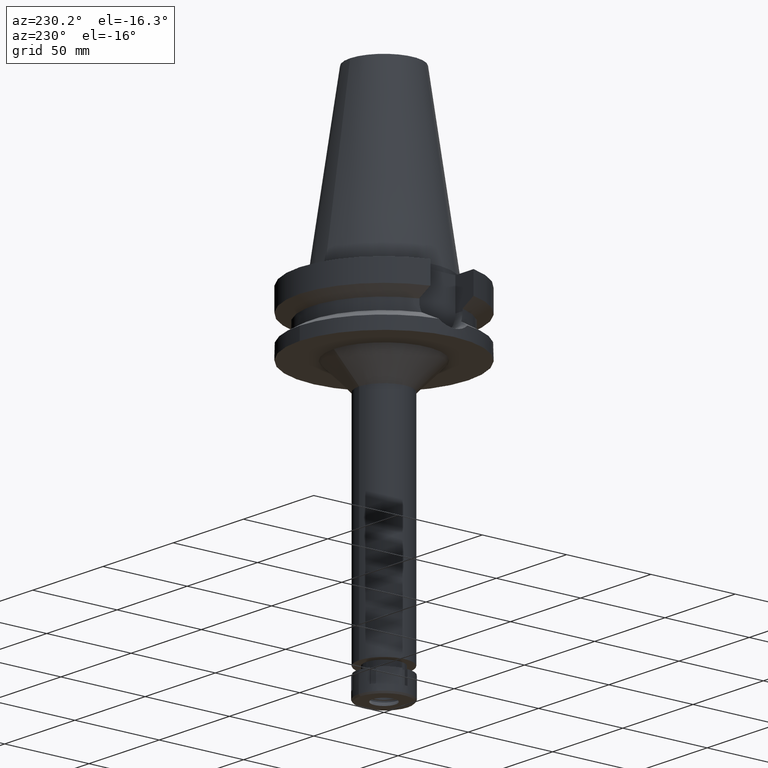
[diagram: clean part render]
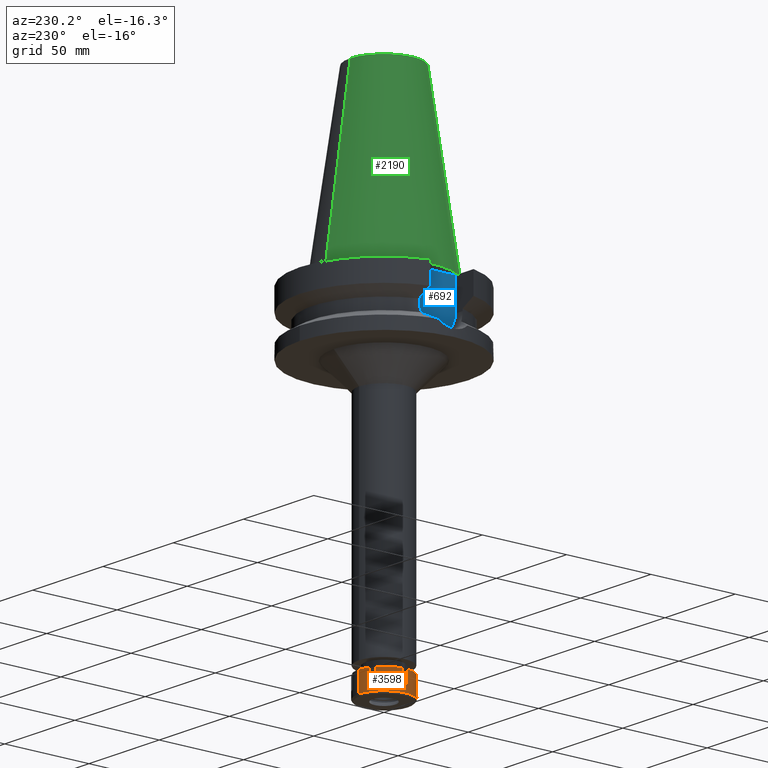
[diagram: same view with three faces highlighted in distinct colors, each labeled with its STEP entity id]
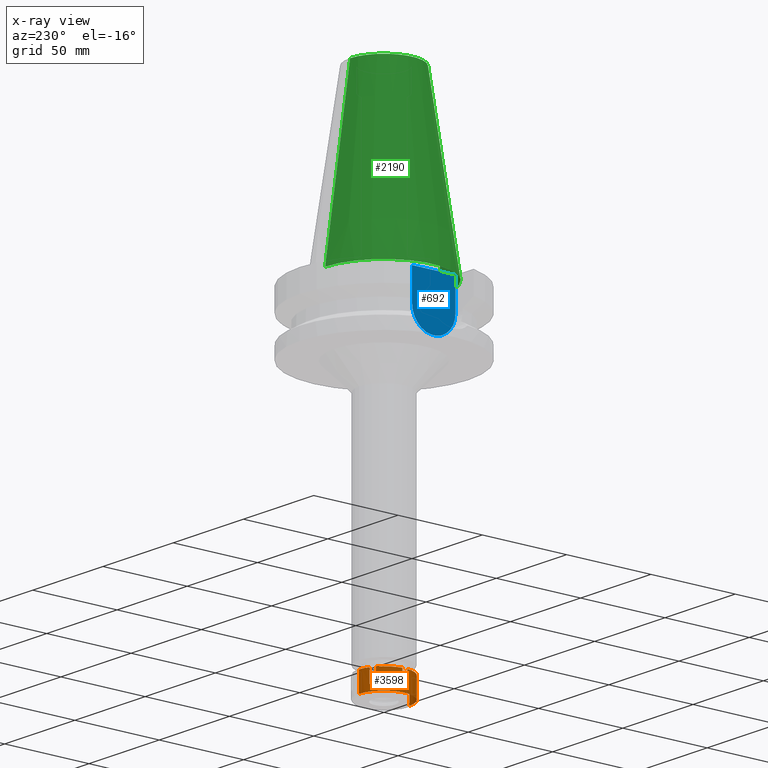
[diagram: x-ray of the same camera — body ghosted, the three highlighted faces saturated]
A machine part, auxiliary view with three faces highlighted in distinct colors.
The next image is the same camera in x-ray (body ghosted, the three faces saturated) — at least one of them is partly hidden behind the body in this view.
Their STEP definitions:

[orange] entity #3598 — the highlighted cylindrical surface (edge-blend (fillet) strip) has radius 15 mm, axis along (0, 0, -1).
#27 = EDGE_CURVE ( 'NONE', #848, #1413, #1573, .T. ) ;
#45 = LINE ( 'NONE', #3471, #1958 ) ;
#89 = CARTESIAN_POINT ( 'NONE',  ( 0.0000000000000000000, 0.0000000000000000000, 0.0000000000000000000 ) ) ;
#157 = DIRECTION ( 'NONE',  ( 0.0000000000000000000, 0.0000000000000000000, -1.000000000000000000 ) ) ;
#193 = CIRCLE ( 'NONE', #3346, 15.00000000000000533 ) ;
#202 = VECTOR ( 'NONE', #470, 1000.000000000000000 ) ;
#215 = CARTESIAN_POINT ( 'NONE',  ( -8.761443883976001601, 12.17526595470999951, -8.000000000000000000 ) ) ;
#222 = DIRECTION ( 'NONE',  ( 0.0000000000000000000, 0.0000000000000000000, -1.000000000000000000 ) ) ;
#264 = ORIENTED_EDGE ( 'NONE', *, *, #2712, .T. ) ;
#322 = EDGE_CURVE ( 'NONE', #3193, #703, #45, .T. ) ;
#360 = CARTESIAN_POINT ( 'NONE',  ( -6.163367672623000004, -13.67526595470999951, -8.000000000000000000 ) ) ;
#371 = ORIENTED_EDGE ( 'NONE', *, *, #3369, .T. ) ;
#382 = CARTESIAN_POINT ( 'NONE',  ( 0.0000000000000000000, 0.0000000000000000000, -8.000000000000000000 ) ) ;
#417 = LINE ( 'NONE', #2958, #202 ) ;
#460 = CARTESIAN_POINT ( 'NONE',  ( 0.0000000000000000000, 0.0000000000000000000, -8.000000000000000000 ) ) ;
#470 = DIRECTION ( 'NONE',  ( 0.0000000000000000000, 0.0000000000000000000, -1.000000000000000000 ) ) ;
#482 = VECTOR ( 'NONE', #2738, 1000.000000000000000 ) ;
#485 = CIRCLE ( 'NONE', #1843, 15.00000000000000000 ) ;
#487 = LINE ( 'NONE', #3551, #1204 ) ;
#489 = AXIS2_PLACEMENT_3D ( 'NONE', #382, #1233, #3185 ) ;
#493 = AXIS2_PLACEMENT_3D ( 'NONE', #691, #940, #676 ) ;
#530 = CIRCLE ( 'NONE', #2014, 14.99999999999999645 ) ;
#551 = DIRECTION ( 'NONE',  ( 0.0000000000000000000, 0.0000000000000000000, 1.000000000000000000 ) ) ;
#594 = CARTESIAN_POINT ( 'NONE',  ( 0.0000000000000000000, -15.00000000000000000, 0.0000000000000000000 ) ) ;
#664 = AXIS2_PLACEMENT_3D ( 'NONE', #1336, #1365, #1891 ) ;
#676 = DIRECTION ( 'NONE',  ( -0.4108911781748131320, 0.9116843969807282289, 0.0000000000000000000 ) ) ;
#688 = VERTEX_POINT ( 'NONE', #360 ) ;
#691 = CARTESIAN_POINT ( 'NONE',  ( 0.0000000000000000000, 0.0000000000000000000, 0.0000000000000000000 ) ) ;
#703 = VERTEX_POINT ( 'NONE', #1217 ) ;
#710 = CARTESIAN_POINT ( 'NONE',  ( -6.163367672621999915, 13.67526595470999951, 0.0000000000000000000 ) ) ;
#714 = EDGE_CURVE ( 'NONE', #3006, #2495, #2343, .T. ) ;
#737 = DIRECTION ( 'NONE',  ( -0.9949874371066197432, -0.1000000000000019623, 0.0000000000000000000 ) ) ;
#750 = EDGE_CURVE ( 'NONE', #3006, #3412, #1620, .T. ) ;
#797 = DIRECTION ( 'NONE',  ( -0.5840962589317860720, 0.8116843969806811776, 0.0000000000000000000 ) ) ;
#829 = EDGE_CURVE ( 'NONE', #703, #1776, #2561, .T. ) ;
#848 = VERTEX_POINT ( 'NONE', #2876 ) ;
#855 = CARTESIAN_POINT ( 'NONE',  ( -6.163367672623000004, -13.67526595470999951, 0.0000000000000000000 ) ) ;
#878 = CARTESIAN_POINT ( 'NONE',  ( -8.761443883976001601, -12.17526595470999951, -8.000000000000000000 ) ) ;
#889 = CARTESIAN_POINT ( 'NONE',  ( -8.761443883976001601, -12.17526595470999951, 0.0000000000000000000 ) ) ;
#934 = VERTEX_POINT ( 'NONE', #2320 ) ;
#940 = DIRECTION ( 'NONE',  ( 0.0000000000000000000, 0.0000000000000000000, -1.000000000000000000 ) ) ;
#951 = DIRECTION ( 'NONE',  ( 0.0000000000000000000, -1.000000000000000000, 0.0000000000000000000 ) ) ;
#977 = DIRECTION ( 'NONE',  ( 0.0000000000000000000, 0.0000000000000000000, 1.000000000000000000 ) ) ;
#1013 = ORIENTED_EDGE ( 'NONE', *, *, #322, .T. ) ;
#1034 = CARTESIAN_POINT ( 'NONE',  ( -8.761443883976001601, -12.17526595470999951, 0.0000000000000000000 ) ) ;
#1054 = EDGE_CURVE ( 'NONE', #3371, #3412, #1271, .T. ) ;
#1090 = CIRCLE ( 'NONE', #664, 15.00000000000000533 ) ;
#1136 = EDGE_CURVE ( 'NONE', #2042, #1516, #485, .T. ) ;
#1143 = VERTEX_POINT ( 'NONE', #1525 ) ;
#1183 = ORIENTED_EDGE ( 'NONE', *, *, #1136, .T. ) ;
#1204 = VECTOR ( 'NONE', #977, 1000.000000000000000 ) ;
#1217 = CARTESIAN_POINT ( 'NONE',  ( 0.0000000000000000000, 15.00000000000000000, -11.59999999999999964 ) ) ;
#1221 = ORIENTED_EDGE ( 'NONE', *, *, #3511, .T. ) ;
#1228 = DIRECTION ( 'NONE',  ( 0.0000000000000000000, 0.0000000000000000000, -1.000000000000000000 ) ) ;
#1233 = DIRECTION ( 'NONE',  ( 0.0000000000000000000, 0.0000000000000000000, -1.000000000000000000 ) ) ;
#1271 = LINE ( 'NONE', #2358, #3587 ) ;
#1284 = CARTESIAN_POINT ( 'NONE',  ( 0.0000000000000000000, 15.00000000000000000, 0.0000000000000000000 ) ) ;
#1296 = CARTESIAN_POINT ( 'NONE',  ( 0.0000000000000000000, 0.0000000000000000000, 0.0000000000000000000 ) ) ;
#1308 = CARTESIAN_POINT ( 'NONE',  ( 0.0000000000000000000, 0.0000000000000000000, 0.0000000000000000000 ) ) ;
#1336 = CARTESIAN_POINT ( 'NONE',  ( 0.0000000000000000000, 0.0000000000000000000, 0.0000000000000000000 ) ) ;
#1349 = CARTESIAN_POINT ( 'NONE',  ( 0.0000000000000000000, -15.00000000000000000, -11.59999999999999964 ) ) ;
#1365 = DIRECTION ( 'NONE',  ( 0.0000000000000000000, 0.0000000000000000000, -1.000000000000000000 ) ) ;
#1413 = VERTEX_POINT ( 'NONE', #2955 ) ;
#1433 = ORIENTED_EDGE ( 'NONE', *, *, #2793, .F. ) ;
#1449 = ORIENTED_EDGE ( 'NONE', *, *, #3617, .F. ) ;
#1450 = DIRECTION ( 'NONE',  ( 0.0000000000000000000, 0.0000000000000000000, -1.000000000000000000 ) ) ;
#1516 = VERTEX_POINT ( 'NONE', #855 ) ;
#1525 = CARTESIAN_POINT ( 'NONE',  ( -8.761443883976001601, 12.17526595470999951, -8.000000000000000000 ) ) ;
#1573 = LINE ( 'NONE', #710, #3150 ) ;
#1618 = ORIENTED_EDGE ( 'NONE', *, *, #1054, .F. ) ;
#1620 = CIRCLE ( 'NONE', #1852, 15.00000000000000355 ) ;
#1632 = VERTEX_POINT ( 'NONE', #3174 ) ;
#1636 = ORIENTED_EDGE ( 'NONE', *, *, #750, .T. ) ;
#1661 = ORIENTED_EDGE ( 'NONE', *, *, #1751, .T. ) ;
#1751 = EDGE_CURVE ( 'NONE', #1143, #1413, #530, .T. ) ;
#1776 = VERTEX_POINT ( 'NONE', #1349 ) ;
#1818 = ORIENTED_EDGE ( 'NONE', *, *, #714, .F. ) ;
#1843 = AXIS2_PLACEMENT_3D ( 'NONE', #89, #1228, #951 ) ;
#1850 = DIRECTION ( 'NONE',  ( 0.0000000000000000000, 0.0000000000000000000, -1.000000000000000000 ) ) ;
#1852 = AXIS2_PLACEMENT_3D ( 'NONE', #1308, #3567, #2956 ) ;
#1853 = DIRECTION ( 'NONE',  ( 0.0000000000000000000, -1.000000000000000000, 0.0000000000000000000 ) ) ;
#1891 = DIRECTION ( 'NONE',  ( -0.9949874371066197432, 0.1000000000000019623, 0.0000000000000000000 ) ) ;
#1916 = VECTOR ( 'NONE', #3317, 1000.000000000000000 ) ;
#1958 = VECTOR ( 'NONE', #1450, 1000.000000000000000 ) ;
#2014 = AXIS2_PLACEMENT_3D ( 'NONE', #460, #222, #797 ) ;
#2042 = VERTEX_POINT ( 'NONE', #594 ) ;
#2121 = ORIENTED_EDGE ( 'NONE', *, *, #27, .F. ) ;
#2150 = CIRCLE ( 'NONE', #489, 15.00000000000000178 ) ;
#2216 = LINE ( 'NONE', #3367, #1916 ) ;
#2316 = AXIS2_PLACEMENT_3D ( 'NONE', #2809, #551, #3671 ) ;
#2320 = CARTESIAN_POINT ( 'NONE',  ( -14.92481155659999992, 1.500000000000000000, -8.000000000000000000 ) ) ;
#2343 = LINE ( 'NONE', #1034, #482 ) ;
#2358 = CARTESIAN_POINT ( 'NONE',  ( -14.92481155659999992, -1.500000000000000000, -8.000000000000000000 ) ) ;
#2375 = EDGE_CURVE ( 'NONE', #3371, #934, #193, .T. ) ;
#2425 = FACE_OUTER_BOUND ( 'NONE', #2869, .T. ) ;
#2439 = LINE ( 'NONE', #215, #2987 ) ;
#2495 = VERTEX_POINT ( 'NONE', #878 ) ;
#2558 = CARTESIAN_POINT ( 'NONE',  ( -14.92481155659999992, -1.500000000000000000, 0.0000000000000000000 ) ) ;
#2561 = CIRCLE ( 'NONE', #2316, 15.00000000000000000 ) ;
#2711 = CYLINDRICAL_SURFACE ( 'NONE', #3409, 15.00000000000000000 ) ;
#2712 = EDGE_CURVE ( 'NONE', #688, #2495, #2150, .T. ) ;
#2738 = DIRECTION ( 'NONE',  ( 0.0000000000000000000, 0.0000000000000000000, -1.000000000000000000 ) ) ;
#2746 = DIRECTION ( 'NONE',  ( 0.0000000000000000000, 0.0000000000000000000, -1.000000000000000000 ) ) ;
#2768 = ORIENTED_EDGE ( 'NONE', *, *, #3344, .F. ) ;
#2777 = EDGE_CURVE ( 'NONE', #1143, #3236, #2439, .T. ) ;
#2793 = EDGE_CURVE ( 'NONE', #688, #1516, #487, .T. ) ;
#2809 = CARTESIAN_POINT ( 'NONE',  ( 0.0000000000000000000, 0.0000000000000000000, -11.59999999999999964 ) ) ;
#2869 = EDGE_LOOP ( 'NONE', ( #2121, #1221, #1013, #2934, #2768, #1183, #1433, #264, #1818, #1636, #1618, #3482, #1449, #371, #3358, #1661 ) ) ;
#2876 = CARTESIAN_POINT ( 'NONE',  ( -6.163367672621999915, 13.67526595470999951, 0.0000000000000000000 ) ) ;
#2933 = DIRECTION ( 'NONE',  ( 0.0000000000000000000, 0.0000000000000000000, 1.000000000000000000 ) ) ;
#2934 = ORIENTED_EDGE ( 'NONE', *, *, #829, .T. ) ;
#2955 = CARTESIAN_POINT ( 'NONE',  ( -6.163367672621999915, 13.67526595470999951, -8.000000000000000000 ) ) ;
#2956 = DIRECTION ( 'NONE',  ( -0.5840962589317197917, -0.8116843969807286951, 0.0000000000000000000 ) ) ;
#2958 = CARTESIAN_POINT ( 'NONE',  ( -14.92481155659999992, 1.500000000000000000, 0.0000000000000000000 ) ) ;
#2987 = VECTOR ( 'NONE', #3246, 1000.000000000000000 ) ;
#3006 = VERTEX_POINT ( 'NONE', #889 ) ;
#3029 = CARTESIAN_POINT ( 'NONE',  ( -14.92481155659999992, -1.500000000000000000, -8.000000000000000000 ) ) ;
#3150 = VECTOR ( 'NONE', #1850, 1000.000000000000000 ) ;
#3174 = CARTESIAN_POINT ( 'NONE',  ( -14.92481155659999992, 1.500000000000000000, 0.0000000000000000000 ) ) ;
#3185 = DIRECTION ( 'NONE',  ( -0.4108911781748959546, -0.9116843969806908143, 0.0000000000000000000 ) ) ;
#3193 = VERTEX_POINT ( 'NONE', #1284 ) ;
#3213 = CARTESIAN_POINT ( 'NONE',  ( -8.761443883976001601, 12.17526595470999951, 0.0000000000000000000 ) ) ;
#3236 = VERTEX_POINT ( 'NONE', #3213 ) ;
#3246 = DIRECTION ( 'NONE',  ( 0.0000000000000000000, 0.0000000000000000000, 1.000000000000000000 ) ) ;
#3317 = DIRECTION ( 'NONE',  ( 0.0000000000000000000, 0.0000000000000000000, -1.000000000000000000 ) ) ;
#3344 = EDGE_CURVE ( 'NONE', #2042, #1776, #2216, .T. ) ;
#3346 = AXIS2_PLACEMENT_3D ( 'NONE', #3609, #2746, #737 ) ;
#3354 = CIRCLE ( 'NONE', #493, 14.99999999999999645 ) ;
#3358 = ORIENTED_EDGE ( 'NONE', *, *, #2777, .F. ) ;
#3367 = CARTESIAN_POINT ( 'NONE',  ( 0.0000000000000000000, -15.00000000000000000, 0.0000000000000000000 ) ) ;
#3369 = EDGE_CURVE ( 'NONE', #1632, #3236, #1090, .T. ) ;
#3371 = VERTEX_POINT ( 'NONE', #3029 ) ;
#3409 = AXIS2_PLACEMENT_3D ( 'NONE', #1296, #157, #1853 ) ;
#3412 = VERTEX_POINT ( 'NONE', #2558 ) ;
#3471 = CARTESIAN_POINT ( 'NONE',  ( 0.0000000000000000000, 15.00000000000000000, 0.0000000000000000000 ) ) ;
#3482 = ORIENTED_EDGE ( 'NONE', *, *, #2375, .T. ) ;
#3511 = EDGE_CURVE ( 'NONE', #848, #3193, #3354, .T. ) ;
#3551 = CARTESIAN_POINT ( 'NONE',  ( -6.163367672623000004, -13.67526595470999951, -8.000000000000000000 ) ) ;
#3567 = DIRECTION ( 'NONE',  ( 0.0000000000000000000, 0.0000000000000000000, -1.000000000000000000 ) ) ;
#3587 = VECTOR ( 'NONE', #2933, 1000.000000000000000 ) ;
#3598 = ADVANCED_FACE ( 'NONE', ( #2425 ), #2711, .T. ) ;
#3609 = CARTESIAN_POINT ( 'NONE',  ( 0.0000000000000000000, 0.0000000000000000000, -8.000000000000000000 ) ) ;
#3617 = EDGE_CURVE ( 'NONE', #1632, #934, #417, .T. ) ;
#3671 = DIRECTION ( 'NONE',  ( 0.0000000000000000000, 1.000000000000000000, 0.0000000000000000000 ) ) ;

[blue] entity #692 — the highlighted planar face has unit normal (-1, 0, 0).
#61 = AXIS2_PLACEMENT_3D ( 'NONE', #1115, #325, #2276 ) ;
#325 = DIRECTION ( 'NONE',  ( 1.000000000000000000, 0.0000000000000000000, 0.0000000000000000000 ) ) ;
#375 = VERTEX_POINT ( 'NONE', #1997 ) ;
#388 = CARTESIAN_POINT ( 'NONE',  ( -35.39999999999999858, 12.84999999999999964, -21.14999999999999858 ) ) ;
#571 = CARTESIAN_POINT ( 'NONE',  ( -35.39999999999999858, -12.84999999999999964, -3.000000000000000000 ) ) ;
#590 = CARTESIAN_POINT ( 'NONE',  ( -35.39999999999999858, 2.015768631397000034E-14, 0.0000000000000000000 ) ) ;
#677 = DIRECTION ( 'NONE',  ( 0.0000000000000000000, 0.0000000000000000000, 1.000000000000000000 ) ) ;
#692 = ADVANCED_FACE ( 'NONE', ( #899 ), #2020, .T. ) ;
#749 = ORIENTED_EDGE ( 'NONE', *, *, #864, .F. ) ;
#834 = VECTOR ( 'NONE', #677, 1000.000000000000000 ) ;
#864 = EDGE_CURVE ( 'NONE', #1375, #3602, #2199, .T. ) ;
#899 = FACE_OUTER_BOUND ( 'NONE', #2655, .T. ) ;
#1061 = CARTESIAN_POINT ( 'NONE',  ( -35.39999999999999858, -12.84999999999999964, -21.14999999999999858 ) ) ;
#1079 = VECTOR ( 'NONE', #3515, 1000.000000000000000 ) ;
#1115 = CARTESIAN_POINT ( 'NONE',  ( -35.39999999999999858, 1.497743035356999952E-14, -21.14999999999999858 ) ) ;
#1375 = VERTEX_POINT ( 'NONE', #1061 ) ;
#1403 = DIRECTION ( 'NONE',  ( 0.0000000000000000000, 1.000000000000000000, 0.0000000000000000000 ) ) ;
#1496 = CARTESIAN_POINT ( 'NONE',  ( -35.39999999999999858, -12.84999999999999964, -3.000000000000000000 ) ) ;
#1559 = LINE ( 'NONE', #388, #834 ) ;
#1740 = EDGE_CURVE ( 'NONE', #3602, #375, #1559, .T. ) ;
#1963 = EDGE_CURVE ( 'NONE', #3199, #375, #2520, .T. ) ;
#1997 = CARTESIAN_POINT ( 'NONE',  ( -35.39999999999999858, 12.84999999999999964, -3.000000000000000000 ) ) ;
#2020 = PLANE ( 'NONE',  #2626 ) ;
#2174 = EDGE_CURVE ( 'NONE', #3199, #1375, #2902, .T. ) ;
#2199 = CIRCLE ( 'NONE', #61, 12.84999999999999964 ) ;
#2276 = DIRECTION ( 'NONE',  ( 0.0000000000000000000, -1.000000000000000000, 0.0000000000000000000 ) ) ;
#2370 = ORIENTED_EDGE ( 'NONE', *, *, #2174, .F. ) ;
#2411 = CARTESIAN_POINT ( 'NONE',  ( -35.39999999999999858, -12.84999999999999964, -3.000000000000000000 ) ) ;
#2445 = ORIENTED_EDGE ( 'NONE', *, *, #1963, .T. ) ;
#2520 = LINE ( 'NONE', #571, #3525 ) ;
#2626 = AXIS2_PLACEMENT_3D ( 'NONE', #590, #2843, #3166 ) ;
#2655 = EDGE_LOOP ( 'NONE', ( #2729, #749, #2370, #2445 ) ) ;
#2729 = ORIENTED_EDGE ( 'NONE', *, *, #1740, .F. ) ;
#2843 = DIRECTION ( 'NONE',  ( -1.000000000000000000, 0.0000000000000000000, 0.0000000000000000000 ) ) ;
#2902 = LINE ( 'NONE', #1496, #1079 ) ;
#3166 = DIRECTION ( 'NONE',  ( 0.0000000000000000000, 0.0000000000000000000, 1.000000000000000000 ) ) ;
#3199 = VERTEX_POINT ( 'NONE', #2411 ) ;
#3515 = DIRECTION ( 'NONE',  ( 0.0000000000000000000, 0.0000000000000000000, -1.000000000000000000 ) ) ;
#3525 = VECTOR ( 'NONE', #1403, 1000.000000000000000 ) ;
#3575 = CARTESIAN_POINT ( 'NONE',  ( -35.39999999999999858, 12.84999999999999964, -21.14999999999999858 ) ) ;
#3602 = VERTEX_POINT ( 'NONE', #3575 ) ;

[green] entity #2190 — the highlighted conical surface has half-angle 8.297 deg.
#28 = DIRECTION ( 'NONE',  ( 0.0000000000000000000, -1.000000000000000000, 0.0000000000000000000 ) ) ;
#161 = VERTEX_POINT ( 'NONE', #278 ) ;
#172 = CARTESIAN_POINT ( 'NONE',  ( 0.0000000000000000000, -34.92499999999999716, 5.115907697473000027E-13 ) ) ;
#189 = DIRECTION ( 'NONE',  ( 0.0000000000000000000, -1.000000000000000000, 0.0000000000000000000 ) ) ;
#196 = CARTESIAN_POINT ( 'NONE',  ( 0.0000000000000000000, 20.07942971896000017, 101.7999999999999972 ) ) ;
#278 = CARTESIAN_POINT ( 'NONE',  ( 0.0000000000000000000, -20.07942971896000017, 101.7999999999999972 ) ) ;
#366 = AXIS2_PLACEMENT_3D ( 'NONE', #2415, #3563, #189 ) ;
#442 = ORIENTED_EDGE ( 'NONE', *, *, #984, .F. ) ;
#451 = VERTEX_POINT ( 'NONE', #1837 ) ;
#475 = EDGE_CURVE ( 'NONE', #161, #451, #2501, .T. ) ;
#592 = VECTOR ( 'NONE', #3688, 1000.000000000000114 ) ;
#626 = CARTESIAN_POINT ( 'NONE',  ( 0.0000000000000000000, 1.847992019912999597E-14, 50.89999999999999858 ) ) ;
#906 = DIRECTION ( 'NONE',  ( 0.0000000000000000000, -1.000000000000000000, 0.0000000000000000000 ) ) ;
#916 = EDGE_CURVE ( 'NONE', #161, #2813, #2549, .T. ) ;
#927 = CARTESIAN_POINT ( 'NONE',  ( 0.0000000000000000000, 34.92499999999999716, 5.115907697473000027E-13 ) ) ;
#961 = FACE_OUTER_BOUND ( 'NONE', #2778, .T. ) ;
#984 = EDGE_CURVE ( 'NONE', #2813, #3117, #1026, .T. ) ;
#1026 = CIRCLE ( 'NONE', #2686, 34.92499999999999716 ) ;
#1430 = AXIS2_PLACEMENT_3D ( 'NONE', #626, #1475, #906 ) ;
#1475 = DIRECTION ( 'NONE',  ( 0.0000000000000000000, 0.0000000000000000000, -1.000000000000000000 ) ) ;
#1837 = CARTESIAN_POINT ( 'NONE',  ( 0.0000000000000000000, 20.07942971896000017, 101.7999999999999972 ) ) ;
#1949 = DIRECTION ( 'NONE',  ( 0.0000000000000000000, 0.0000000000000000000, -1.000000000000000000 ) ) ;
#2190 = ADVANCED_FACE ( 'NONE', ( #961 ), #3043, .T. ) ;
#2401 = LINE ( 'NONE', #196, #2448 ) ;
#2415 = CARTESIAN_POINT ( 'NONE',  ( 0.0000000000000000000, 1.847992019912999597E-14, 101.7999999999999972 ) ) ;
#2448 = VECTOR ( 'NONE', #3039, 1000.000000000000114 ) ;
#2490 = ORIENTED_EDGE ( 'NONE', *, *, #475, .T. ) ;
#2501 = CIRCLE ( 'NONE', #366, 20.07942971896000017 ) ;
#2539 = ORIENTED_EDGE ( 'NONE', *, *, #916, .F. ) ;
#2549 = LINE ( 'NONE', #3431, #592 ) ;
#2686 = AXIS2_PLACEMENT_3D ( 'NONE', #3142, #1949, #28 ) ;
#2778 = EDGE_LOOP ( 'NONE', ( #442, #2539, #2490, #3004 ) ) ;
#2791 = EDGE_CURVE ( 'NONE', #451, #3117, #2401, .T. ) ;
#2813 = VERTEX_POINT ( 'NONE', #172 ) ;
#3004 = ORIENTED_EDGE ( 'NONE', *, *, #2791, .T. ) ;
#3039 = DIRECTION ( 'NONE',  ( 0.0000000000000000000, 0.1443043893538948075, -0.9895333461855641000 ) ) ;
#3043 = CONICAL_SURFACE ( 'NONE', #1430, 27.50221485948000222, 0.1448099680379422438 ) ;
#3117 = VERTEX_POINT ( 'NONE', #927 ) ;
#3142 = CARTESIAN_POINT ( 'NONE',  ( 0.0000000000000000000, 1.847992019912999597E-14, 3.979039320256999774E-13 ) ) ;
#3431 = CARTESIAN_POINT ( 'NONE',  ( 0.0000000000000000000, -20.07942971896000017, 101.7999999999999972 ) ) ;
#3563 = DIRECTION ( 'NONE',  ( 0.0000000000000000000, 0.0000000000000000000, -1.000000000000000000 ) ) ;
#3688 = DIRECTION ( 'NONE',  ( 0.0000000000000000000, -0.1443043893538948075, -0.9895333461855641000 ) ) ;